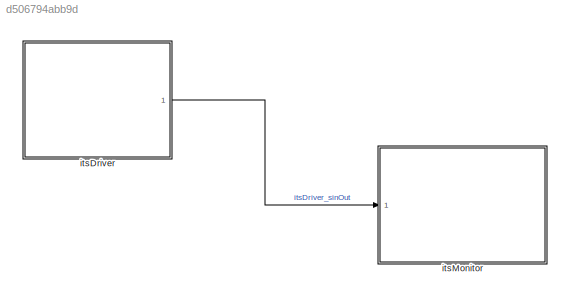
MODEL slx_d506794abb9d
KIND model
CONFIG AbsTol = auto
CONFIG EnableMultiTasking = off
CONFIG FixedStep = auto
CONFIG MaxStep = auto
CONFIG MinStep = auto
CONFIG RelTol = 1e-3
CONFIG SampleTimeConstraint = Unconstrained
CONFIG SolverName = VariableStepAuto
CONFIG StartTime = 0.0
CONFIG StopTime = 20.0
BLOCK [ModelReference] itsDriver
  ModelNameDialog = SineWaveGenerator
  ModelReferenceVersion = 1.1
  Ports = [0, 1]
BLOCK [ModelReference] itsMonitor
  ModelNameDialog = SineWaveDisplay
  ModelReferenceVersion = 1.2
  Ports = [1]
LINE itsDriver:1 -> itsMonitor:1
